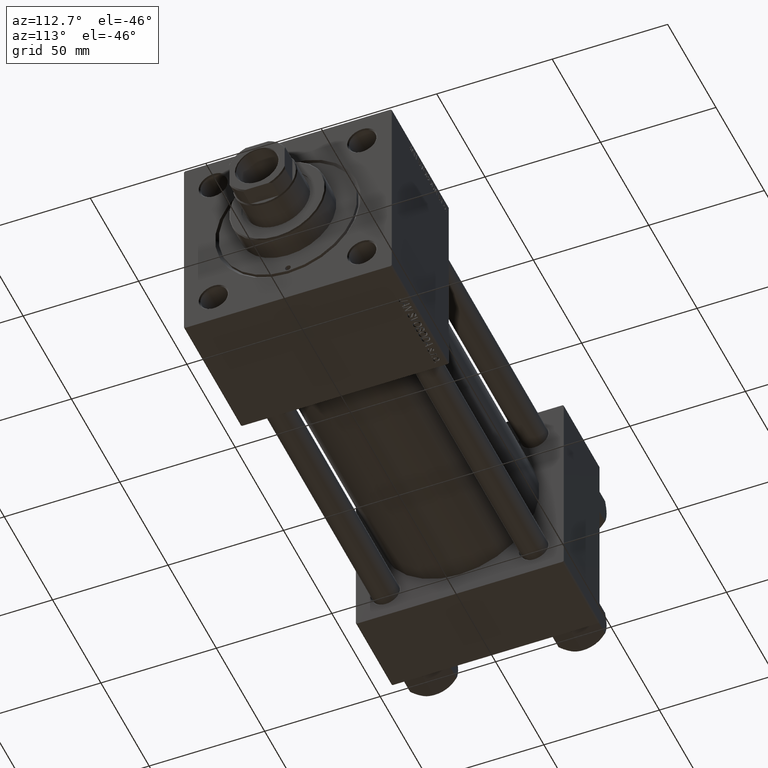
[diagram: clean part render]
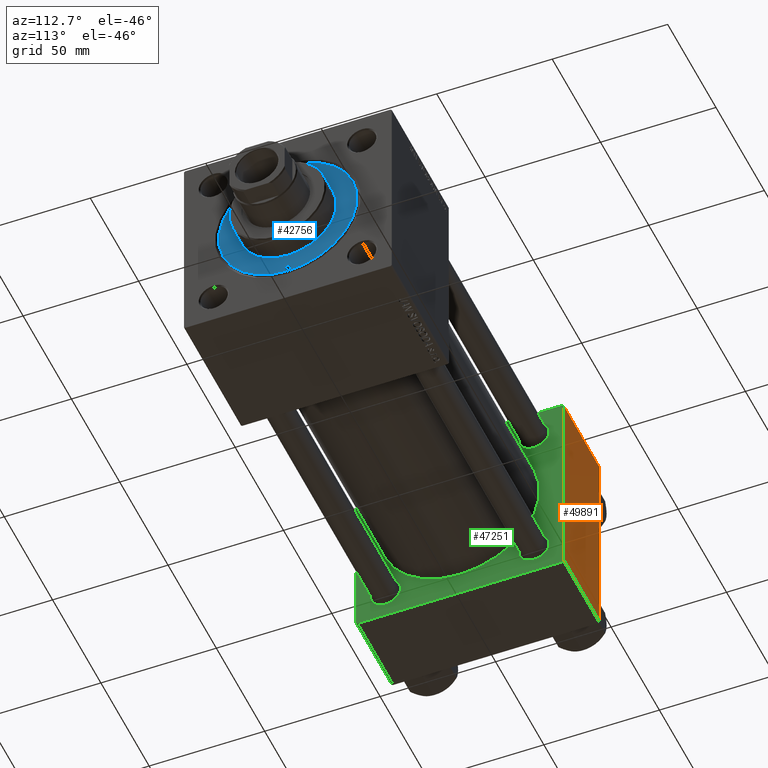
[diagram: same view with three faces highlighted in distinct colors, each labeled with its STEP entity id]
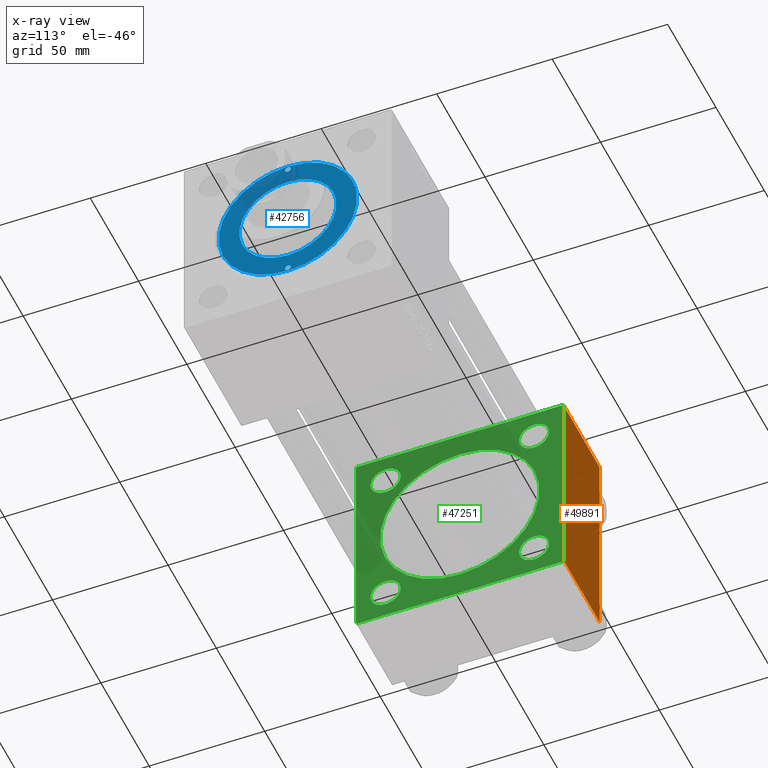
[diagram: x-ray of the same camera — body ghosted, the three highlighted faces saturated]
A machine part, auxiliary view with three faces highlighted in distinct colors.
The next image is the same camera in x-ray (body ghosted, the three faces saturated) — at least one of them is partly hidden behind the body in this view.
Their STEP definitions:

[orange] entity #49891 — the highlighted planar face has unit normal (0, 1, 0).
#2766 = ORIENTED_EDGE ( 'NONE', *, *, #21877, .T. ) ;
#2848 = CARTESIAN_POINT ( 'NONE',  ( 0.000000000000000000, 44.99999999999998579, -44.49999999999995737 ) ) ;
#3516 = CARTESIAN_POINT ( 'NONE',  ( 37.00000000000000000, 44.99999999999998579, -44.49999999999995737 ) ) ;
#6931 = ORIENTED_EDGE ( 'NONE', *, *, #32315, .T. ) ;
#8315 = CARTESIAN_POINT ( 'NONE',  ( 37.00000000000000000, 44.99999999999998579, 44.50000000000001421 ) ) ;
#10160 = FACE_OUTER_BOUND ( 'NONE', #18973, .T. ) ;
#10811 = AXIS2_PLACEMENT_3D ( 'NONE', #41225, #48859, #45052 ) ;
#11445 = CARTESIAN_POINT ( 'NONE',  ( 0.000000000000000000, 44.99999999999998579, 45.00000000000001421 ) ) ;
#13895 = VECTOR ( 'NONE', #32268, 1000.000000000000000 ) ;
#14794 = DIRECTION ( 'NONE',  ( 0.000000000000000000, 0.000000000000000000, -1.000000000000000000 ) ) ;
#16262 = DIRECTION ( 'NONE',  ( 0.000000000000000000, 0.000000000000000000, -1.000000000000000000 ) ) ;
#18973 = EDGE_LOOP ( 'NONE', ( #2766, #35634, #40811, #6931 ) ) ;
#20093 = LINE ( 'NONE', #43742, #23633 ) ;
#21877 = EDGE_CURVE ( 'NONE', #23003, #32240, #20093, .T. ) ;
#23003 = VERTEX_POINT ( 'NONE', #35588 ) ;
#23626 = LINE ( 'NONE', #8315, #40099 ) ;
#23633 = VECTOR ( 'NONE', #16262, 1000.000000000000000 ) ;
#23870 = CARTESIAN_POINT ( 'NONE',  ( 37.00000000000000000, 44.99999999999998579, -44.49999999999998579 ) ) ;
#23886 = DIRECTION ( 'NONE',  ( 1.000000000000000000, 0.000000000000000000, 0.000000000000000000 ) ) ;
#27579 = VERTEX_POINT ( 'NONE', #2848 ) ;
#28659 = VECTOR ( 'NONE', #14794, 1000.000000000000000 ) ;
#30136 = VERTEX_POINT ( 'NONE', #36493 ) ;
#30578 = LINE ( 'NONE', #11445, #28659 ) ;
#30811 = EDGE_CURVE ( 'NONE', #30136, #27579, #30578, .T. ) ;
#32240 = VERTEX_POINT ( 'NONE', #3516 ) ;
#32268 = DIRECTION ( 'NONE',  ( -1.000000000000000000, 0.000000000000000000, 0.000000000000000000 ) ) ;
#32315 = EDGE_CURVE ( 'NONE', #30136, #23003, #23626, .T. ) ;
#33322 = PLANE ( 'NONE',  #10811 ) ;
#35588 = CARTESIAN_POINT ( 'NONE',  ( 37.00000000000000000, 44.99999999999998579, 44.50000000000001421 ) ) ;
#35634 = ORIENTED_EDGE ( 'NONE', *, *, #46565, .T. ) ;
#36493 = CARTESIAN_POINT ( 'NONE',  ( 0.000000000000000000, 44.99999999999998579, 44.50000000000001421 ) ) ;
#40099 = VECTOR ( 'NONE', #23886, 1000.000000000000000 ) ;
#40811 = ORIENTED_EDGE ( 'NONE', *, *, #30811, .F. ) ;
#41225 = CARTESIAN_POINT ( 'NONE',  ( 37.00000000000000000, 44.99999999999998579, 45.00000000000001421 ) ) ;
#43742 = CARTESIAN_POINT ( 'NONE',  ( 37.00000000000000000, 44.99999999999998579, 45.00000000000001421 ) ) ;
#43964 = LINE ( 'NONE', #23870, #13895 ) ;
#45052 = DIRECTION ( 'NONE',  ( 0.000000000000000000, -0.000000000000000000, 1.000000000000000000 ) ) ;
#46565 = EDGE_CURVE ( 'NONE', #32240, #27579, #43964, .T. ) ;
#48859 = DIRECTION ( 'NONE',  ( -0.000000000000000000, 1.000000000000000000, 0.000000000000000000 ) ) ;
#49891 = ADVANCED_FACE ( 'NONE', ( #10160 ), #33322, .T. ) ;

[blue] entity #42756 — the highlighted planar face has unit normal (1, 0, 0).
#988 = FACE_BOUND ( 'NONE', #5890, .T. ) ;
#2126 = EDGE_CURVE ( 'NONE', #41956, #48979, #22138, .T. ) ;
#3090 = DIRECTION ( 'NONE',  ( 1.000000000000000000, 0.000000000000000000, 0.000000000000000000 ) ) ;
#4111 = CARTESIAN_POINT ( 'NONE',  ( -30.00000000000000000, 0.000000000000000000, 28.69999999999999929 ) ) ;
#4231 = AXIS2_PLACEMENT_3D ( 'NONE', #39437, #5285, #12926 ) ;
#4656 = EDGE_LOOP ( 'NONE', ( #42488, #26781 ) ) ;
#4842 = DIRECTION ( 'NONE',  ( 1.000000000000000000, 0.000000000000000000, 0.000000000000000000 ) ) ;
#4855 = AXIS2_PLACEMENT_3D ( 'NONE', #47356, #28514, #44030 ) ;
#5285 = DIRECTION ( 'NONE',  ( 0.000000000000000000, 0.000000000000000000, 1.000000000000000000 ) ) ;
#5429 = EDGE_CURVE ( 'NONE', #32935, #27247, #40123, .T. ) ;
#5890 = EDGE_LOOP ( 'NONE', ( #32723, #31518 ) ) ;
#6757 = CARTESIAN_POINT ( 'NONE',  ( 0.000000000000000000, 0.000000000000000000, 28.69999999999999929 ) ) ;
#8955 = CARTESIAN_POINT ( 'NONE',  ( 0.000000000000000000, 0.000000000000000000, 28.69999999999999929 ) ) ;
#9682 = ORIENTED_EDGE ( 'NONE', *, *, #20787, .F. ) ;
#9705 = DIRECTION ( 'NONE',  ( 1.000000000000000000, 0.000000000000000000, 0.000000000000000000 ) ) ;
#10287 = DIRECTION ( 'NONE',  ( 0.000000000000000000, 0.000000000000000000, 1.000000000000000000 ) ) ;
#10622 = VERTEX_POINT ( 'NONE', #50302 ) ;
#10974 = VERTEX_POINT ( 'NONE', #28199 ) ;
#11563 = AXIS2_PLACEMENT_3D ( 'NONE', #41598, #10287, #37787 ) ;
#11859 = VERTEX_POINT ( 'NONE', #19243 ) ;
#12926 = DIRECTION ( 'NONE',  ( 1.000000000000000000, 0.000000000000000000, 0.000000000000000000 ) ) ;
#14156 = DIRECTION ( 'NONE',  ( 1.000000000000000000, 0.000000000000000000, 0.000000000000000000 ) ) ;
#14559 = CARTESIAN_POINT ( 'NONE',  ( 28.25000000000000000, 0.000000000000000000, 28.69999999999999929 ) ) ;
#16571 = FACE_BOUND ( 'NONE', #35574, .T. ) ;
#16843 = CARTESIAN_POINT ( 'NONE',  ( 28.25000000000000000, 0.000000000000000000, 28.69999999999999929 ) ) ;
#16905 = EDGE_CURVE ( 'NONE', #11859, #10974, #22633, .T. ) ;
#17098 = CIRCLE ( 'NONE', #4855, 1.249999999999997558 ) ;
#17568 = CARTESIAN_POINT ( 'NONE',  ( 0.000000000000000000, 0.000000000000000000, 28.69999999999999929 ) ) ;
#19243 = CARTESIAN_POINT ( 'NONE',  ( 29.50000000000000000, 0.000000000000000000, 28.69999999999999929 ) ) ;
#19279 = AXIS2_PLACEMENT_3D ( 'NONE', #17568, #21871, #48851 ) ;
#19739 = CIRCLE ( 'NONE', #11563, 30.00000000000000000 ) ;
#20387 = FACE_BOUND ( 'NONE', #27445, .T. ) ;
#20787 = EDGE_CURVE ( 'NONE', #27247, #32935, #27598, .T. ) ;
#21369 = EDGE_CURVE ( 'NONE', #48979, #41956, #17098, .T. ) ;
#21864 = CARTESIAN_POINT ( 'NONE',  ( -27.00000000000000355, 0.000000000000000000, 28.69999999999999929 ) ) ;
#21871 = DIRECTION ( 'NONE',  ( 0.000000000000000000, 0.000000000000000000, 1.000000000000000000 ) ) ;
#22138 = CIRCLE ( 'NONE', #4231, 1.249999999999997558 ) ;
#22633 = CIRCLE ( 'NONE', #40486, 1.249999999999997558 ) ;
#24948 = FACE_OUTER_BOUND ( 'NONE', #4656, .T. ) ;
#26781 = ORIENTED_EDGE ( 'NONE', *, *, #48878, .T. ) ;
#27160 = ORIENTED_EDGE ( 'NONE', *, *, #21369, .F. ) ;
#27247 = VERTEX_POINT ( 'NONE', #46709 ) ;
#27445 = EDGE_LOOP ( 'NONE', ( #42069, #27160 ) ) ;
#27598 = CIRCLE ( 'NONE', #44699, 21.00000000000000000 ) ;
#28199 = CARTESIAN_POINT ( 'NONE',  ( 27.00000000000000355, 1.530808498934192803E-16, 28.69999999999999929 ) ) ;
#28514 = DIRECTION ( 'NONE',  ( 0.000000000000000000, 0.000000000000000000, 1.000000000000000000 ) ) ;
#29307 = EDGE_CURVE ( 'NONE', #36032, #10622, #31841, .T. ) ;
#31518 = ORIENTED_EDGE ( 'NONE', *, *, #39189, .F. ) ;
#31841 = CIRCLE ( 'NONE', #44050, 30.00000000000000000 ) ;
#32115 = DIRECTION ( 'NONE',  ( 0.000000000000000000, 0.000000000000000000, 1.000000000000000000 ) ) ;
#32723 = ORIENTED_EDGE ( 'NONE', *, *, #16905, .F. ) ;
#32879 = CARTESIAN_POINT ( 'NONE',  ( -29.50000000000000000, 1.530808498934192803E-16, 28.69999999999999929 ) ) ;
#32935 = VERTEX_POINT ( 'NONE', #42025 ) ;
#33997 = DIRECTION ( 'NONE',  ( 0.000000000000000000, 0.000000000000000000, 1.000000000000000000 ) ) ;
#34489 = DIRECTION ( 'NONE',  ( 1.000000000000000000, 0.000000000000000000, 0.000000000000000000 ) ) ;
#34539 = ORIENTED_EDGE ( 'NONE', *, *, #5429, .F. ) ;
#35574 = EDGE_LOOP ( 'NONE', ( #34539, #9682 ) ) ;
#36032 = VERTEX_POINT ( 'NONE', #4111 ) ;
#37126 = PLANE ( 'NONE',  #19279 ) ;
#37787 = DIRECTION ( 'NONE',  ( 1.000000000000000000, 0.000000000000000000, 0.000000000000000000 ) ) ;
#39189 = EDGE_CURVE ( 'NONE', #10974, #11859, #40306, .T. ) ;
#39437 = CARTESIAN_POINT ( 'NONE',  ( -28.25000000000000000, 0.000000000000000000, 28.69999999999999929 ) ) ;
#40123 = CIRCLE ( 'NONE', #43383, 21.00000000000000000 ) ;
#40306 = CIRCLE ( 'NONE', #46820, 1.249999999999997558 ) ;
#40486 = AXIS2_PLACEMENT_3D ( 'NONE', #16843, #32115, #4842 ) ;
#41598 = CARTESIAN_POINT ( 'NONE',  ( 0.000000000000000000, 0.000000000000000000, 28.69999999999999929 ) ) ;
#41956 = VERTEX_POINT ( 'NONE', #21864 ) ;
#42025 = CARTESIAN_POINT ( 'NONE',  ( -21.00000000000000000, 0.000000000000000000, 28.69999999999999929 ) ) ;
#42069 = ORIENTED_EDGE ( 'NONE', *, *, #2126, .F. ) ;
#42488 = ORIENTED_EDGE ( 'NONE', *, *, #29307, .T. ) ;
#42756 = ADVANCED_FACE ( 'NONE', ( #20387, #988, #16571, #24948 ), #37126, .T. ) ;
#43383 = AXIS2_PLACEMENT_3D ( 'NONE', #8955, #44124, #9705 ) ;
#44030 = DIRECTION ( 'NONE',  ( 1.000000000000000000, 0.000000000000000000, 0.000000000000000000 ) ) ;
#44050 = AXIS2_PLACEMENT_3D ( 'NONE', #6757, #33997, #34489 ) ;
#44124 = DIRECTION ( 'NONE',  ( 0.000000000000000000, 0.000000000000000000, 1.000000000000000000 ) ) ;
#44699 = AXIS2_PLACEMENT_3D ( 'NONE', #44965, #49041, #14156 ) ;
#44965 = CARTESIAN_POINT ( 'NONE',  ( 0.000000000000000000, 0.000000000000000000, 28.69999999999999929 ) ) ;
#46709 = CARTESIAN_POINT ( 'NONE',  ( 21.00000000000000000, 2.571758278209441661E-15, 28.69999999999999929 ) ) ;
#46820 = AXIS2_PLACEMENT_3D ( 'NONE', #14559, #49684, #3090 ) ;
#47356 = CARTESIAN_POINT ( 'NONE',  ( -28.25000000000000000, 0.000000000000000000, 28.69999999999999929 ) ) ;
#48851 = DIRECTION ( 'NONE',  ( 1.000000000000000000, 0.000000000000000000, -0.000000000000000000 ) ) ;
#48878 = EDGE_CURVE ( 'NONE', #10622, #36032, #19739, .T. ) ;
#48979 = VERTEX_POINT ( 'NONE', #32879 ) ;
#49041 = DIRECTION ( 'NONE',  ( 0.000000000000000000, 0.000000000000000000, 1.000000000000000000 ) ) ;
#49684 = DIRECTION ( 'NONE',  ( 0.000000000000000000, 0.000000000000000000, 1.000000000000000000 ) ) ;
#50302 = CARTESIAN_POINT ( 'NONE',  ( 30.00000000000000000, 3.673940397442059178E-15, 28.69999999999999929 ) ) ;

[green] entity #47251 — the highlighted planar face has unit normal (-1, 0, 0).
#533 = EDGE_CURVE ( 'NONE', #25322, #44441, #30986, .T. ) ;
#1243 = CARTESIAN_POINT ( 'NONE',  ( 37.00000000000000000, 32.14999999999999147, -32.15000000000000568 ) ) ;
#1957 = EDGE_CURVE ( 'NONE', #32850, #12465, #9463, .T. ) ;
#2103 = EDGE_LOOP ( 'NONE', ( #18889, #42422, #25035, #17135, #15306, #9346, #48674, #42623 ) ) ;
#2487 = FACE_OUTER_BOUND ( 'NONE', #2103, .T. ) ;
#2543 = AXIS2_PLACEMENT_3D ( 'NONE', #18064, #3256, #45041 ) ;
#2580 = VECTOR ( 'NONE', #24778, 1000.000000000000000 ) ;
#2754 = PLANE ( 'NONE',  #2543 ) ;
#3215 = VERTEX_POINT ( 'NONE', #35722 ) ;
#3256 = DIRECTION ( 'NONE',  ( -1.000000000000000000, 0.000000000000000000, -0.000000000000000000 ) ) ;
#3404 = VERTEX_POINT ( 'NONE', #49705 ) ;
#3516 = CARTESIAN_POINT ( 'NONE',  ( 37.00000000000000000, 44.99999999999998579, -44.49999999999995737 ) ) ;
#4065 = CIRCLE ( 'NONE', #32532, 6.500000000000005329 ) ;
#4330 = DIRECTION ( 'NONE',  ( 0.000000000000000000, 0.000000000000000000, 1.000000000000000000 ) ) ;
#4862 = EDGE_CURVE ( 'NONE', #7985, #28637, #23843, .T. ) ;
#5220 = CARTESIAN_POINT ( 'NONE',  ( 37.00000000000000000, -44.49999999999995737, 45.00000000000000000 ) ) ;
#5328 = CARTESIAN_POINT ( 'NONE',  ( 37.00000000000000000, 32.14999999999999147, -32.15000000000000568 ) ) ;
#5391 = DIRECTION ( 'NONE',  ( 0.000000000000000000, 0.000000000000000000, 1.000000000000000000 ) ) ;
#6282 = AXIS2_PLACEMENT_3D ( 'NONE', #10507, #38489, #42073 ) ;
#6411 = EDGE_CURVE ( 'NONE', #44441, #25322, #32848, .T. ) ;
#6707 = DIRECTION ( 'NONE',  ( 0.000000000000000000, 0.000000000000000000, 1.000000000000000000 ) ) ;
#7181 = LINE ( 'NONE', #41566, #34908 ) ;
#7346 = CIRCLE ( 'NONE', #37441, 34.50000000000000000 ) ;
#7435 = CIRCLE ( 'NONE', #9062, 6.499999999999977796 ) ;
#7521 = CARTESIAN_POINT ( 'NONE',  ( 37.00000000000000000, -44.49999999999998579, -45.00000000000000000 ) ) ;
#7822 = VERTEX_POINT ( 'NONE', #14216 ) ;
#7985 = VERTEX_POINT ( 'NONE', #9528 ) ;
#8076 = VERTEX_POINT ( 'NONE', #5220 ) ;
#8883 = CARTESIAN_POINT ( 'NONE',  ( 37.00000000000000000, -45.00000000000000711, 44.49999999999997158 ) ) ;
#8887 = DIRECTION ( 'NONE',  ( 0.000000000000000000, -1.000000000000000000, -1.541976423090495387E-16 ) ) ;
#9062 = AXIS2_PLACEMENT_3D ( 'NONE', #36942, #29848, #33383 ) ;
#9346 = ORIENTED_EDGE ( 'NONE', *, *, #28022, .T. ) ;
#9463 = LINE ( 'NONE', #36697, #2580 ) ;
#9528 = CARTESIAN_POINT ( 'NONE',  ( 37.00000000000000000, -32.14999999999997726, -25.65000000000000568 ) ) ;
#10228 = EDGE_LOOP ( 'NONE', ( #14684, #48379 ) ) ;
#10507 = CARTESIAN_POINT ( 'NONE',  ( 37.00000000000000711, -2.602085213965210642E-15, 0.000000000000000000 ) ) ;
#10690 = DIRECTION ( 'NONE',  ( -0.000000000000000000, -0.7071067811865425767, -0.7071067811865524577 ) ) ;
#11339 = LINE ( 'NONE', #7521, #32140 ) ;
#12312 = VECTOR ( 'NONE', #45125, 1000.000000000000000 ) ;
#12465 = VERTEX_POINT ( 'NONE', #28834 ) ;
#12887 = CARTESIAN_POINT ( 'NONE',  ( 37.00000000000000000, 32.14999999999999147, 32.15000000000000568 ) ) ;
#13711 = FACE_BOUND ( 'NONE', #22072, .T. ) ;
#14216 = CARTESIAN_POINT ( 'NONE',  ( 37.00000000000000711, 1.622946243093158675E-15, -34.50000000000000000 ) ) ;
#14684 = ORIENTED_EDGE ( 'NONE', *, *, #14750, .F. ) ;
#14750 = EDGE_CURVE ( 'NONE', #19027, #7822, #46937, .T. ) ;
#15306 = ORIENTED_EDGE ( 'NONE', *, *, #46098, .T. ) ;
#15867 = CIRCLE ( 'NONE', #18300, 6.499999999999977796 ) ;
#15935 = VERTEX_POINT ( 'NONE', #17862 ) ;
#16262 = DIRECTION ( 'NONE',  ( 0.000000000000000000, 0.000000000000000000, -1.000000000000000000 ) ) ;
#16355 = VECTOR ( 'NONE', #8887, 1000.000000000000000 ) ;
#17135 = ORIENTED_EDGE ( 'NONE', *, *, #19899, .T. ) ;
#17818 = CARTESIAN_POINT ( 'NONE',  ( 37.00000000000000000, 32.14999999999999147, -38.64999999999998437 ) ) ;
#17862 = CARTESIAN_POINT ( 'NONE',  ( 37.00000000000000000, 32.14999999999999147, -25.65000000000002700 ) ) ;
#18064 = CARTESIAN_POINT ( 'NONE',  ( 37.00000000000000000, 0.000000000000000000, 0.000000000000000000 ) ) ;
#18145 = CARTESIAN_POINT ( 'NONE',  ( 37.00000000000000000, 44.99999999999998579, -44.99999999999998579 ) ) ;
#18300 = AXIS2_PLACEMENT_3D ( 'NONE', #1243, #40459, #25184 ) ;
#18889 = ORIENTED_EDGE ( 'NONE', *, *, #24137, .F. ) ;
#18969 = DIRECTION ( 'NONE',  ( 0.000000000000000000, 0.000000000000000000, 1.000000000000000000 ) ) ;
#19027 = VERTEX_POINT ( 'NONE', #42558 ) ;
#19899 = EDGE_CURVE ( 'NONE', #23003, #3404, #7181, .T. ) ;
#20093 = LINE ( 'NONE', #43742, #23633 ) ;
#20890 = DIRECTION ( 'NONE',  ( -1.000000000000000000, 0.000000000000000000, -0.000000000000000000 ) ) ;
#21096 = VERTEX_POINT ( 'NONE', #34866 ) ;
#21474 = AXIS2_PLACEMENT_3D ( 'NONE', #29353, #29107, #24796 ) ;
#21731 = EDGE_CURVE ( 'NONE', #28637, #7985, #4065, .T. ) ;
#21877 = EDGE_CURVE ( 'NONE', #23003, #32240, #20093, .T. ) ;
#22072 = EDGE_LOOP ( 'NONE', ( #48660, #35454 ) ) ;
#22335 = AXIS2_PLACEMENT_3D ( 'NONE', #12887, #43956, #32259 ) ;
#22632 = FACE_BOUND ( 'NONE', #36947, .T. ) ;
#23003 = VERTEX_POINT ( 'NONE', #35588 ) ;
#23320 = CIRCLE ( 'NONE', #46906, 6.499999999999977796 ) ;
#23633 = VECTOR ( 'NONE', #16262, 1000.000000000000000 ) ;
#23843 = CIRCLE ( 'NONE', #30351, 6.500000000000005329 ) ;
#24072 = CARTESIAN_POINT ( 'NONE',  ( 37.00000000000000000, -32.14999999999997726, 25.65000000000000568 ) ) ;
#24137 = EDGE_CURVE ( 'NONE', #3215, #21096, #25523, .T. ) ;
#24692 = VECTOR ( 'NONE', #24914, 1000.000000000000114 ) ;
#24769 = CARTESIAN_POINT ( 'NONE',  ( 37.00000000000000000, -32.14999999999997726, 32.15000000000001279 ) ) ;
#24778 = DIRECTION ( 'NONE',  ( 0.000000000000000000, 7.709882115452476934E-17, -1.000000000000000000 ) ) ;
#24796 = DIRECTION ( 'NONE',  ( 0.000000000000000000, 0.000000000000000000, 1.000000000000000000 ) ) ;
#24914 = DIRECTION ( 'NONE',  ( -0.000000000000000000, 0.7071067811865474617, 0.7071067811865474617 ) ) ;
#25035 = ORIENTED_EDGE ( 'NONE', *, *, #21877, .F. ) ;
#25184 = DIRECTION ( 'NONE',  ( 0.000000000000000000, 0.000000000000000000, 1.000000000000000000 ) ) ;
#25322 = VERTEX_POINT ( 'NONE', #32463 ) ;
#25523 = LINE ( 'NONE', #18145, #12312 ) ;
#25798 = EDGE_CURVE ( 'NONE', #41196, #33709, #7435, .T. ) ;
#26252 = CARTESIAN_POINT ( 'NONE',  ( 37.00000000000000000, -32.14999999999997726, -38.65000000000001990 ) ) ;
#26974 = ORIENTED_EDGE ( 'NONE', *, *, #21731, .T. ) ;
#27262 = DIRECTION ( 'NONE',  ( -1.000000000000000000, 0.000000000000000000, -0.000000000000000000 ) ) ;
#27859 = CARTESIAN_POINT ( 'NONE',  ( 37.00000000000000000, 32.14999999999999147, 38.64999999999998437 ) ) ;
#28022 = EDGE_CURVE ( 'NONE', #8076, #32850, #33858, .T. ) ;
#28535 = LINE ( 'NONE', #44732, #16355 ) ;
#28637 = VERTEX_POINT ( 'NONE', #26252 ) ;
#28834 = CARTESIAN_POINT ( 'NONE',  ( 37.00000000000000000, -45.00000000000000000, -44.49999999999995737 ) ) ;
#29107 = DIRECTION ( 'NONE',  ( -1.000000000000000000, 0.000000000000000000, -0.000000000000000000 ) ) ;
#29353 = CARTESIAN_POINT ( 'NONE',  ( 37.00000000000000000, -32.14999999999997726, 32.15000000000001279 ) ) ;
#29848 = DIRECTION ( 'NONE',  ( -1.000000000000000000, 0.000000000000000000, -0.000000000000000000 ) ) ;
#30100 = ORIENTED_EDGE ( 'NONE', *, *, #6411, .T. ) ;
#30213 = AXIS2_PLACEMENT_3D ( 'NONE', #24769, #40293, #5391 ) ;
#30351 = AXIS2_PLACEMENT_3D ( 'NONE', #46612, #27262, #4330 ) ;
#30822 = CARTESIAN_POINT ( 'NONE',  ( 37.00000000000000711, -2.602085213965210642E-15, 0.000000000000000000 ) ) ;
#30986 = CIRCLE ( 'NONE', #30213, 6.500000000000005329 ) ;
#31257 = CIRCLE ( 'NONE', #22335, 6.499999999999977796 ) ;
#31577 = DIRECTION ( 'NONE',  ( 0.000000000000000000, 0.000000000000000000, 1.000000000000000000 ) ) ;
#31663 = CARTESIAN_POINT ( 'NONE',  ( 37.00000000000000000, -32.14999999999997726, -32.15000000000001279 ) ) ;
#32140 = VECTOR ( 'NONE', #38337, 1000.000000000000114 ) ;
#32240 = VERTEX_POINT ( 'NONE', #3516 ) ;
#32259 = DIRECTION ( 'NONE',  ( 0.000000000000000000, 0.000000000000000000, 1.000000000000000000 ) ) ;
#32463 = CARTESIAN_POINT ( 'NONE',  ( 37.00000000000000000, -32.14999999999997726, 38.65000000000001990 ) ) ;
#32532 = AXIS2_PLACEMENT_3D ( 'NONE', #31663, #35469, #18969 ) ;
#32795 = CARTESIAN_POINT ( 'NONE',  ( 37.00000000000000000, 44.99999999999998579, -44.49999999999998579 ) ) ;
#32848 = CIRCLE ( 'NONE', #21474, 6.500000000000005329 ) ;
#32850 = VERTEX_POINT ( 'NONE', #8883 ) ;
#33040 = ORIENTED_EDGE ( 'NONE', *, *, #533, .T. ) ;
#33093 = EDGE_CURVE ( 'NONE', #3215, #32240, #36838, .T. ) ;
#33383 = DIRECTION ( 'NONE',  ( 0.000000000000000000, 0.000000000000000000, 1.000000000000000000 ) ) ;
#33709 = VERTEX_POINT ( 'NONE', #27859 ) ;
#33858 = LINE ( 'NONE', #49399, #47250 ) ;
#34866 = CARTESIAN_POINT ( 'NONE',  ( 37.00000000000000000, -44.49999999999995737, -45.00000000000000000 ) ) ;
#34908 = VECTOR ( 'NONE', #48704, 1000.000000000000114 ) ;
#35454 = ORIENTED_EDGE ( 'NONE', *, *, #37206, .T. ) ;
#35469 = DIRECTION ( 'NONE',  ( -1.000000000000000000, 0.000000000000000000, -0.000000000000000000 ) ) ;
#35487 = CARTESIAN_POINT ( 'NONE',  ( 37.00000000000000000, 32.14999999999999147, 25.65000000000002700 ) ) ;
#35588 = CARTESIAN_POINT ( 'NONE',  ( 37.00000000000000000, 44.99999999999998579, 44.50000000000001421 ) ) ;
#35722 = CARTESIAN_POINT ( 'NONE',  ( 37.00000000000000000, 44.49999999999998579, -44.99999999999998579 ) ) ;
#36315 = EDGE_CURVE ( 'NONE', #33709, #41196, #31257, .T. ) ;
#36697 = CARTESIAN_POINT ( 'NONE',  ( 37.00000000000000000, -45.00000000000000711, 45.00000000000000000 ) ) ;
#36838 = LINE ( 'NONE', #32795, #24692 ) ;
#36942 = CARTESIAN_POINT ( 'NONE',  ( 37.00000000000000000, 32.14999999999999147, 32.15000000000000568 ) ) ;
#36947 = EDGE_LOOP ( 'NONE', ( #37041, #43919 ) ) ;
#37041 = ORIENTED_EDGE ( 'NONE', *, *, #25798, .T. ) ;
#37123 = FACE_BOUND ( 'NONE', #48839, .T. ) ;
#37206 = EDGE_CURVE ( 'NONE', #15935, #44798, #15867, .T. ) ;
#37379 = FACE_BOUND ( 'NONE', #10228, .T. ) ;
#37441 = AXIS2_PLACEMENT_3D ( 'NONE', #30822, #48482, #6707 ) ;
#38175 = EDGE_LOOP ( 'NONE', ( #26974, #41842 ) ) ;
#38337 = DIRECTION ( 'NONE',  ( 0.000000000000000000, 0.7071067811865474617, -0.7071067811865474617 ) ) ;
#38471 = EDGE_CURVE ( 'NONE', #12465, #21096, #11339, .T. ) ;
#38489 = DIRECTION ( 'NONE',  ( 1.000000000000000000, -0.000000000000000000, 0.000000000000000000 ) ) ;
#40293 = DIRECTION ( 'NONE',  ( -1.000000000000000000, 0.000000000000000000, -0.000000000000000000 ) ) ;
#40459 = DIRECTION ( 'NONE',  ( -1.000000000000000000, 0.000000000000000000, -0.000000000000000000 ) ) ;
#41196 = VERTEX_POINT ( 'NONE', #35487 ) ;
#41566 = CARTESIAN_POINT ( 'NONE',  ( 37.00000000000000000, 44.49999999999998579, 45.00000000000001421 ) ) ;
#41842 = ORIENTED_EDGE ( 'NONE', *, *, #4862, .T. ) ;
#41973 = FACE_BOUND ( 'NONE', #38175, .T. ) ;
#42073 = DIRECTION ( 'NONE',  ( 0.000000000000000000, 0.000000000000000000, 1.000000000000000000 ) ) ;
#42422 = ORIENTED_EDGE ( 'NONE', *, *, #33093, .T. ) ;
#42558 = CARTESIAN_POINT ( 'NONE',  ( 37.00000000000000711, -2.602085213965210642E-15, 34.50000000000000000 ) ) ;
#42623 = ORIENTED_EDGE ( 'NONE', *, *, #38471, .T. ) ;
#42735 = EDGE_CURVE ( 'NONE', #44798, #15935, #23320, .T. ) ;
#43742 = CARTESIAN_POINT ( 'NONE',  ( 37.00000000000000000, 44.99999999999998579, 45.00000000000001421 ) ) ;
#43919 = ORIENTED_EDGE ( 'NONE', *, *, #36315, .T. ) ;
#43956 = DIRECTION ( 'NONE',  ( -1.000000000000000000, 0.000000000000000000, -0.000000000000000000 ) ) ;
#44441 = VERTEX_POINT ( 'NONE', #24072 ) ;
#44592 = EDGE_CURVE ( 'NONE', #7822, #19027, #7346, .T. ) ;
#44732 = CARTESIAN_POINT ( 'NONE',  ( 37.00000000000000000, 44.99999999999998579, 45.00000000000001421 ) ) ;
#44798 = VERTEX_POINT ( 'NONE', #17818 ) ;
#45041 = DIRECTION ( 'NONE',  ( -0.000000000000000000, 0.000000000000000000, 1.000000000000000000 ) ) ;
#45125 = DIRECTION ( 'NONE',  ( 0.000000000000000000, -1.000000000000000000, -1.541976423090495633E-16 ) ) ;
#46098 = EDGE_CURVE ( 'NONE', #3404, #8076, #28535, .T. ) ;
#46612 = CARTESIAN_POINT ( 'NONE',  ( 37.00000000000000000, -32.14999999999997726, -32.15000000000001279 ) ) ;
#46906 = AXIS2_PLACEMENT_3D ( 'NONE', #5328, #20890, #31577 ) ;
#46937 = CIRCLE ( 'NONE', #6282, 34.50000000000000000 ) ;
#47250 = VECTOR ( 'NONE', #10690, 1000.000000000000114 ) ;
#47251 = ADVANCED_FACE ( 'NONE', ( #41973, #13711, #37123, #22632, #37379, #2487 ), #2754, .F. ) ;
#48379 = ORIENTED_EDGE ( 'NONE', *, *, #44592, .F. ) ;
#48482 = DIRECTION ( 'NONE',  ( 1.000000000000000000, -0.000000000000000000, 0.000000000000000000 ) ) ;
#48660 = ORIENTED_EDGE ( 'NONE', *, *, #42735, .T. ) ;
#48674 = ORIENTED_EDGE ( 'NONE', *, *, #1957, .T. ) ;
#48704 = DIRECTION ( 'NONE',  ( 0.000000000000000000, -0.7071067811865474617, 0.7071067811865474617 ) ) ;
#48839 = EDGE_LOOP ( 'NONE', ( #30100, #33040 ) ) ;
#49399 = CARTESIAN_POINT ( 'NONE',  ( 37.00000000000000000, -45.00000000000000711, 44.49999999999997158 ) ) ;
#49705 = CARTESIAN_POINT ( 'NONE',  ( 37.00000000000000000, 44.49999999999998579, 45.00000000000001421 ) ) ;